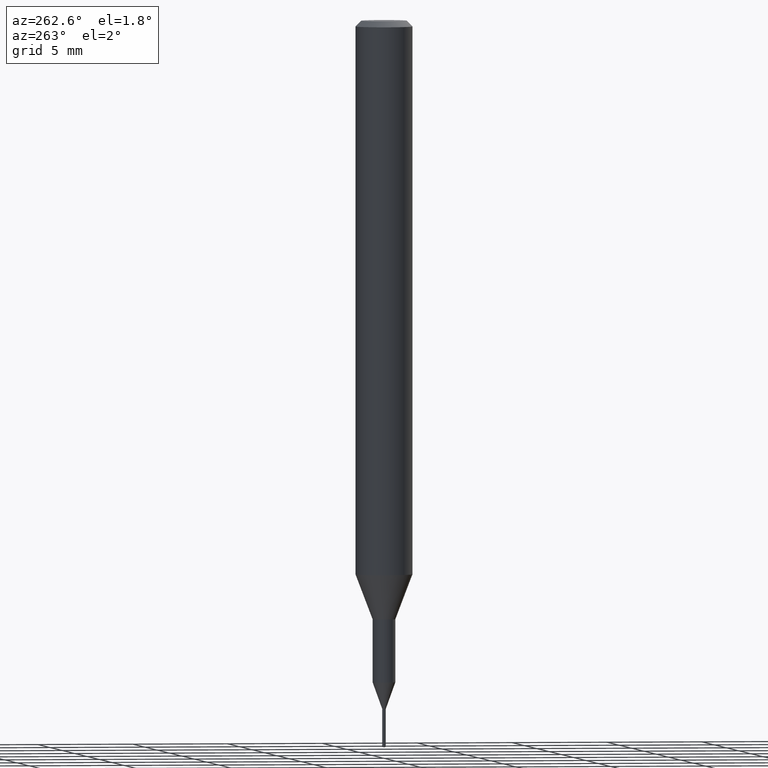
[diagram: clean part render]
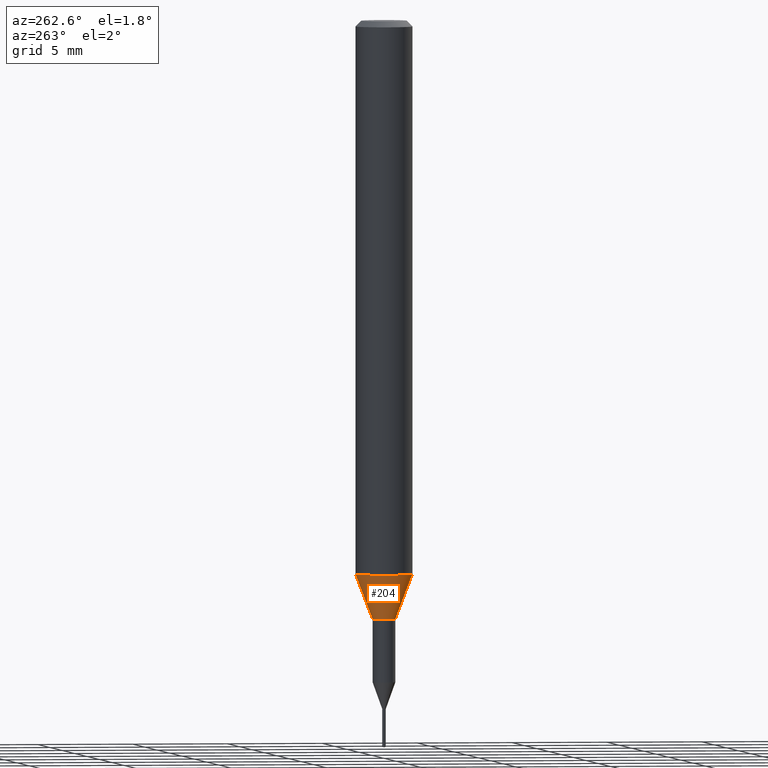
[diagram: same view with one face highlighted and labeled with its STEP entity id]
A machine part, auxiliary view. The second image highlights one B-rep face of the part: STEP entity #204.
In plain terms, the highlighted conical surface has half-angle 20.997 deg.
Its self-contained STEP definition (entity closure, byte-faithful):
#116=EDGE_CURVE('',#156,#118,#294,.T.);
#118=VERTEX_POINT('',#296);
#144=EDGE_CURVE('',#156,#256,#328,.T.);
#156=VERTEX_POINT('',#341);
#166=EDGE_CURVE('',#180,#256,#352,.T.);
#180=VERTEX_POINT('',#368);
#204=ADVANCED_FACE('',(#392),#393,.T.);
#248=EDGE_CURVE('',#118,#180,#445,.T.);
#256=VERTEX_POINT('',#453);
#294=LINE('',#485,#486);
#296=CARTESIAN_POINT('',(1.83690953073357E-016,-1.5,-28.955));
#328=CIRCLE('',#525,0.6);
#341=CARTESIAN_POINT('',(7.34763812293426E-017,-0.6,-31.3));
#352=LINE('',#556,#557);
#368=CARTESIAN_POINT('',(0.0,1.5,-28.955));
#392=FACE_OUTER_BOUND('',#607,.T.);
#393=CONICAL_SURFACE('',#608,1.05,0.366459241971866);
#445=CIRCLE('',#680,1.5);
#453=CARTESIAN_POINT('',(0.0,0.6,-31.3));
#485=CARTESIAN_POINT('',(1.2858366715135E-016,-1.05,-30.1275));
#486=VECTOR('',#716,1.0);
#525=AXIS2_PLACEMENT_3D('',#769,#770,#771);
#556=CARTESIAN_POINT('',(-1.2858366715135E-016,1.05,-30.1275));
#557=VECTOR('',#803,1.0);
#607=EDGE_LOOP('',(#840,#841,#842,#843));
#608=AXIS2_PLACEMENT_3D('',#844,#845,#846);
#680=AXIS2_PLACEMENT_3D('',#918,#919,#920);
#716=DIRECTION('',(4.38791184365088E-017,-0.358312026550805,0.93360189140182));
#769=CARTESIAN_POINT('',(0.0,0.0,-31.3));
#770=DIRECTION('',(0.0,0.0,-1.0));
#771=DIRECTION('',(0.0,1.0,0.0));
#803=DIRECTION('',(4.38791184365088E-017,-0.358312026550805,-0.93360189140182));
#840=ORIENTED_EDGE('',*,*,#166,.T.);
#841=ORIENTED_EDGE('',*,*,#144,.F.);
#842=ORIENTED_EDGE('',*,*,#116,.T.);
#843=ORIENTED_EDGE('',*,*,#248,.T.);
#844=CARTESIAN_POINT('',(0.0,0.0,-30.1275));
#845=DIRECTION('',(-0.0,-0.0,1.0));
#846=DIRECTION('',(0.0,1.0,0.0));
#918=CARTESIAN_POINT('',(0.0,0.0,-28.955));
#919=DIRECTION('',(0.0,0.0,-1.0));
#920=DIRECTION('',(0.0,1.0,0.0));